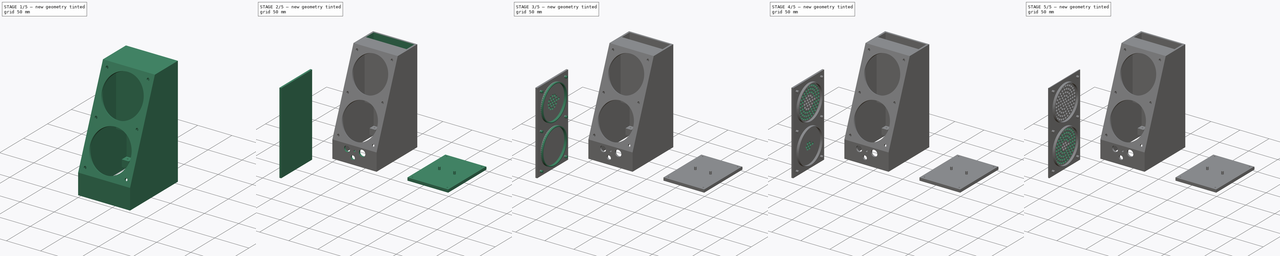
[diagram: build sequence overview — one tinted view per stage of 5, left to right]
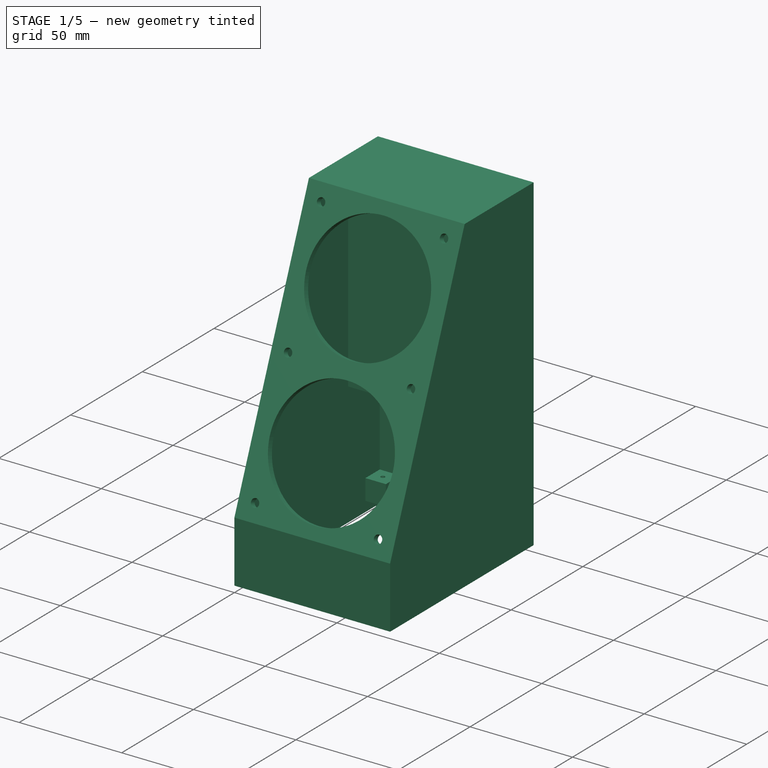
[diagram: stage 1 of 5 — iso view after this stage's code; geometry added in this stage tinted green]
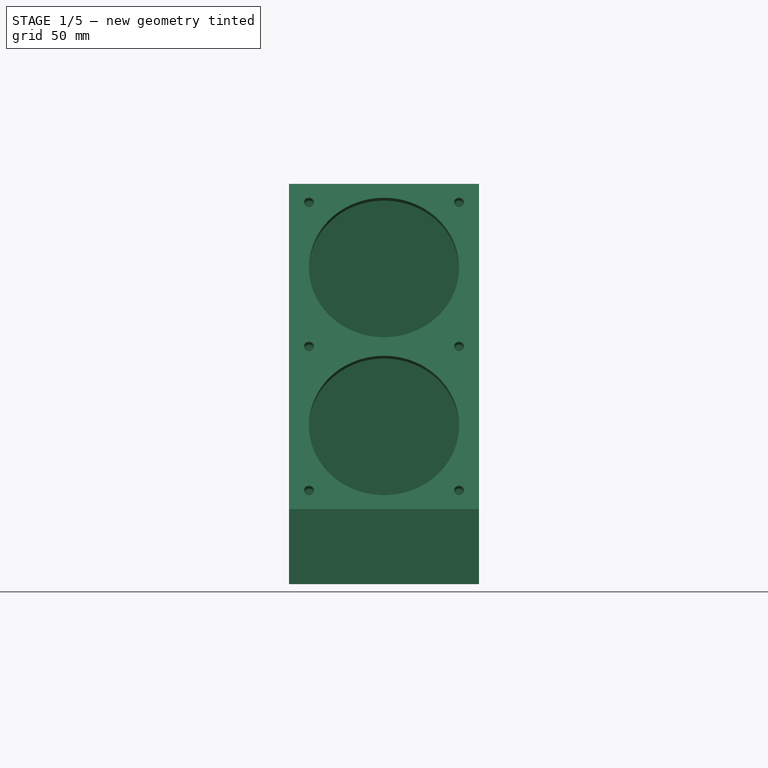
[diagram: stage 1 of 5 — front view after this stage's code; geometry added in this stage tinted green]
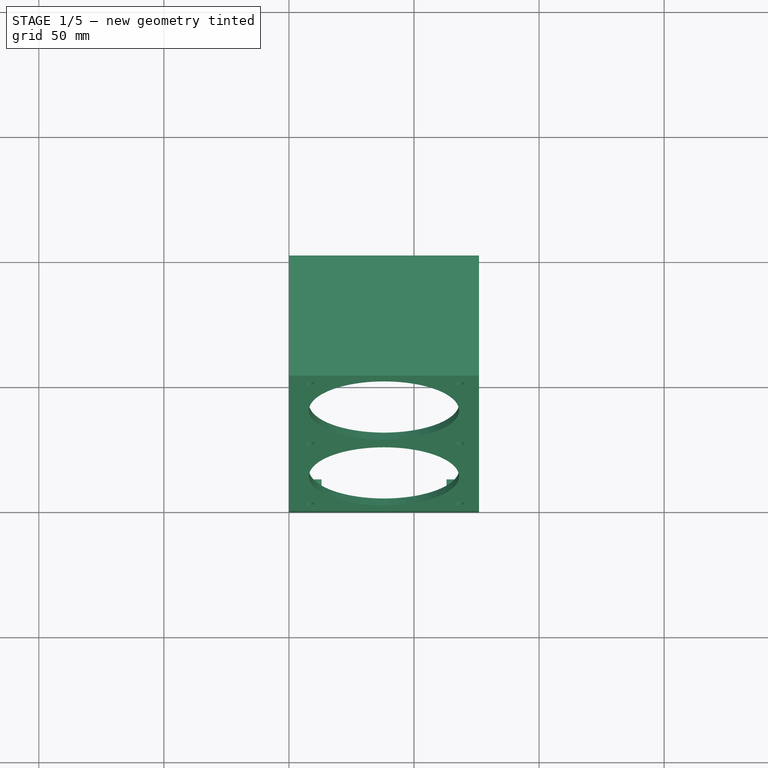
[diagram: stage 1 of 5 — top view after this stage's code; geometry added in this stage tinted green]
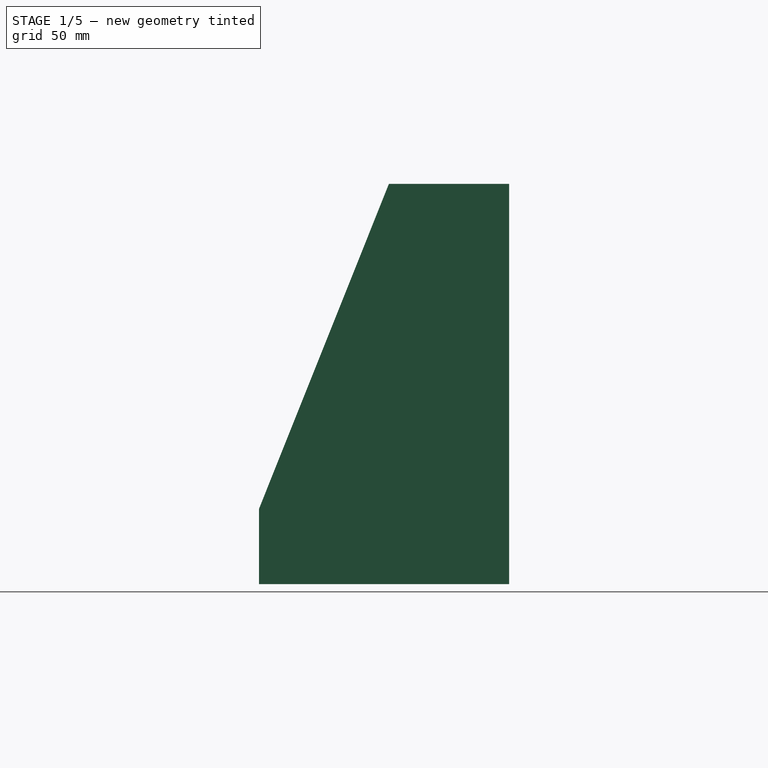
[diagram: stage 1 of 5 — right view after this stage's code; geometry added in this stage tinted green]
FCSTD DOCUMENT  (FreeCAD 0.21R33668 +26 (Git))
Label: speaker
License: All rights reserved
LicenseURL: https://en.wikipedia.org/wiki/All_rights_reserved
objects: Sketcher::SketchObject×27, PartDesign::Pocket×19, PartDesign::PolarPattern×10, PartDesign::Pad×8, PartDesign::Body×3, PartDesign::Fillet×1, PartDesign::Chamfer×1
note: 98 computed .brp shape members not serialized (recipe doc carries the construction recipe); baked Part::Feature solids carry a one-line shape summary decoded from their .brp

FEATURE [Sketcher::SketchObject] Sketch
  FullyConstrained = false
  MapMode = 5
  Placement = pos=(0,0,0) rot=(0.57735,0.57735,0.57735;2.0944rad)
  Support = -> [YZ_Plane]
  sketch-geometry (5):
    g0: LineSegment StartX=-48.0385 StartY=160 StartZ=0 EndX=0 EndY=160 EndZ=0
    g1: LineSegment StartX=-2.4e-15 StartY=160 StartZ=0 EndX=-2.4e-15 EndY=0 EndZ=0
    g2: LineSegment StartX=-2.4e-15 StartY=0 StartZ=0 EndX=-100 EndY=0 EndZ=0
    g3: LineSegment StartX=-100 StartY=0 StartZ=0 EndX=-100 EndY=30 EndZ=0
    g4: LineSegment StartX=-100 StartY=30 StartZ=0 EndX=-48.0385 EndY=160 EndZ=0
  constraints (13):
    c: Horizontal(g0)
    c: Coincident(g0,g1)
    c: Vertical(g1)
    c: Coincident(g1,g2)
    c: Horizontal(g2)
    c: Coincident(g2,g3)
    c: Vertical(g3)
    c: Coincident(g3,g4)
    c: Coincident(g4,g0)
    c: Distance(g4) = 140
    c: Distance(g3) = 30
    c: DistanceX(g2,g2) = 100
    c: Distance(g1) = 160
FEATURE [PartDesign::Pad] Pad  label="Вигляд збоку"
  Direction = (1,-2e-16,3e-16)
  Length = 76
  Length2 = 10
  Placement = pos=(0,0,0) rot=(0.57735,0.57735,0.57735;2.0944rad)
  Profile = -> Sketch
  ReferenceAxis = -> Sketch [N_Axis]
  Type = 0
FEATURE [Sketcher::SketchObject] Sketch001
  ExternalGeometry = -> [Pad]
  FullyConstrained = true
  MapMode = 5
  Placement = pos=(0,0,0) rot=(0.707107,0.707107,0;3.14159rad)
  Support = -> [Pad]
  sketch-geometry (4):
    g0: LineSegment StartX=-97 StartY=73 StartZ=0 EndX=-3 EndY=73 EndZ=0
    g1: LineSegment StartX=-3 StartY=73 StartZ=0 EndX=-3 EndY=3 EndZ=0
    g2: LineSegment StartX=-3 StartY=3 StartZ=0 EndX=-97 EndY=3 EndZ=0
    g3: LineSegment StartX=-97 StartY=3 StartZ=0 EndX=-97 EndY=73 EndZ=0
  constraints (12):
    c: Coincident(g0,g1)
    c: Coincident(g1,g2)
    c: Coincident(g2,g3)
    c: Coincident(g3,g0)
    c: Horizontal(g0)
    c: Horizontal(g2)
    c: Vertical(g1)
    c: Vertical(g3)
    c: Distance(g0,g-2) = 3
    c: Distance(g1,g-1) = 3
    c: Distance(g2,g-4) = 3
    c: Distance(g0,g-3) = 3
FEATURE [PartDesign::Pocket] Pocket  label="Дно"
  BaseFeature = -> Pad
  Direction = (-4e-16,6e-16,1)
  Length = 157
  Length2 = 5
  Placement = pos=(0,0,0) rot=(0.57735,0.57735,0.57735;2.0944rad)
  Profile = -> Sketch001
  ReferenceAxis = -> Sketch001 [N_Axis]
  Type = 0
FEATURE [Sketcher::SketchObject] Sketch002
  ExternalGeometry = -> [Pocket]
  FullyConstrained = true
  MapMode = 5
  Placement = pos=(-5.41e-14,-96.5638,38.5969) rot=(0.489091,0.489091,-0.722205;1.89064rad)
  Support = -> [Pocket]
  sketch-geometry (4):
    g0: LineSegment StartX=-130.742 StartY=76 StartZ=0 EndX=9.25823 EndY=76 EndZ=0
    g1: LineSegment StartX=9.25823 StartY=76 StartZ=0 EndX=9.25823 EndY=2.84e-14 EndZ=0
    g2: LineSegment StartX=9.25823 StartY=2.84e-14 StartZ=0 EndX=-130.742 EndY=2.84e-14 EndZ=0
    g3: LineSegment StartX=-130.742 StartY=2.84e-14 StartZ=0 EndX=-130.742 EndY=76 EndZ=0
  constraints (10):
    c: Coincident(g0,g1)
    c: Coincident(g1,g2)
    c: Coincident(g2,g3)
    c: Coincident(g3,g0)
    c: Horizontal(g0)
    c: Horizontal(g2)
    c: Vertical(g1)
    c: Vertical(g3)
    c: Coincident(g0,g-5)
    c: Coincident(g-3,g1)
FEATURE [PartDesign::Pad] Pad001  label="Накл фронт"
  BaseFeature = -> Pocket
  Direction = (-6e-16,-0.928571,0.371154)
  Length = 3
  Length2 = 0.01
  Placement = pos=(0,0,0) rot=(0.57735,0.57735,0.57735;2.0944rad)
  Profile = -> Sketch002
  ReferenceAxis = -> Sketch002 [N_Axis]
  Reversed = true
  Type = 4
FEATURE [Sketcher::SketchObject] Sketch003
  ExternalGeometry = -> [Pad001]
  FullyConstrained = true
  MapMode = 5
  Placement = pos=(-7.34e-14,-96.5731,38.6006) rot=(0.489091,0.489091,-0.722205;1.89064rad)
  Support = -> [Pad001]
  sketch-geometry (8):
    g0: Circle CenterX=-94.7418 CenterY=38 CenterZ=0 NormalX=0 NormalY=0 NormalZ=1 AngleXU=0 Radius=30
    g1: Circle CenterX=-26.7418 CenterY=38 CenterZ=0 NormalX=0 NormalY=0 NormalZ=1 AngleXU=0 Radius=30
    g2: Circle CenterX=-122.742 CenterY=8 CenterZ=0 NormalX=0 NormalY=0 NormalZ=1 AngleXU=0 Radius=2
    g3: Circle CenterX=-122.742 CenterY=68 CenterZ=0 NormalX=0 NormalY=0 NormalZ=1 AngleXU=0 Radius=2
    g4: Circle CenterX=-60.7418 CenterY=8 CenterZ=0 NormalX=0 NormalY=0 NormalZ=1 AngleXU=0 Radius=2
    g5: Circle CenterX=-60.7418 CenterY=68 CenterZ=0 NormalX=0 NormalY=0 NormalZ=1 AngleXU=0 Radius=2
    g6: Circle CenterX=1.25823 CenterY=8 CenterZ=0 NormalX=0 NormalY=0 NormalZ=1 AngleXU=0 Radius=2
    g7: Circle CenterX=1.25823 CenterY=68 CenterZ=0 NormalX=0 NormalY=0 NormalZ=1 AngleXU=0 Radius=2
  constraints (26):
    c: Equal(g0,g1)
    c: Distance(g0,g-1) = 38
    c: Distance(g1,g-1) = 38
    c: Diameter(g0) = 60
    c: Distance(g0,g-5) = 36
    c: Distance(g1,g-4) = 36
    c: Equal(g2,g3)
    c: Equal(g3,g5)
    c: Equal(g5,g4)
    c: Equal(g4,g6)
    c: Equal(g6,g7)
    c: Diameter(g2) = 4
    c: Distance(g2,g-1) = 8
    c: Distance(g2,g-5) = 8
    c: Distance(g4,g-1) = 8
    c: Distance(g6,g-1) = 8
    c: Distance(g7,g-3) = 8
    c: Distance(g5,g-3) = 8
    c: Distance(g3,g-3) = 8
    c: Distance(g6,g-4) = 8
    c: Distance(g7,g-4) = 8
    c: Distance(g3,g-5) = 8
    c: Distance(g-3) = 140
    c: Distance(g-4) = 76
    c: Distance(g4,g-4) = 70
    c: Distance(g5,g-4) = 70
FEATURE [PartDesign::Pocket] Pocket001  label="Отвори в фронт"
  BaseFeature = -> Pad001
  Direction = (8e-16,0.928571,-0.371154)
  Length = 5
  Length2 = 5
  Placement = pos=(0,0,0) rot=(0.57735,0.57735,0.57735;2.0944rad)
  Profile = -> Sketch003
  ReferenceAxis = -> Sketch003 [N_Axis]
  Type = 2
FEATURE [Sketcher::SketchObject] Sketch017
  ExternalGeometry = -> [Pocket001]
  FullyConstrained = true
  MapMode = 5
  Placement = pos=(0,0,0) rot=(0.707107,0.707107,0;3.14159rad)
  Support = -> [Pocket001]
  sketch-geometry (16):
    g0: LineSegment StartX=-3 StartY=73 StartZ=0 EndX=-13 EndY=73 EndZ=0
    g1: LineSegment StartX=-13 StartY=73 StartZ=0 EndX=-13 EndY=63 EndZ=0
    g2: LineSegment StartX=-13 StartY=63 StartZ=0 EndX=-3 EndY=63 EndZ=0
    g3: LineSegment StartX=-3 StartY=63 StartZ=0 EndX=-3 EndY=73 EndZ=0
    g4: LineSegment StartX=-3 StartY=3 StartZ=0 EndX=-13 EndY=3 EndZ=0
    g5: LineSegment StartX=-13 StartY=3 StartZ=0 EndX=-13 EndY=13 EndZ=0
    g6: LineSegment StartX=-13 StartY=13 StartZ=0 EndX=-3 EndY=13 EndZ=0
    g7: LineSegment StartX=-3 StartY=13 StartZ=0 EndX=-3 EndY=3 EndZ=0
    g8: LineSegment StartX=-97 StartY=3 StartZ=0 EndX=-87 EndY=3 EndZ=0
    g9: LineSegment StartX=-87 StartY=3 StartZ=0 EndX=-87 EndY=13 EndZ=0
    g10: LineSegment StartX=-87 StartY=13 StartZ=0 EndX=-97 EndY=13 EndZ=0
    g11: LineSegment StartX=-97 StartY=13 StartZ=0 EndX=-97 EndY=3 EndZ=0
    g12: LineSegment StartX=-97 StartY=73 StartZ=0 EndX=-87 EndY=73 EndZ=0
    g13: LineSegment StartX=-87 StartY=73 StartZ=0 EndX=-87 EndY=63 EndZ=0
    g14: LineSegment StartX=-87 StartY=63 StartZ=0 EndX=-97 EndY=63 EndZ=0
    g15: LineSegment StartX=-97 StartY=63 StartZ=0 EndX=-97 EndY=73 EndZ=0
  constraints (46):
    c: Distance(g-3) = 70
    c: Distance(g-4) = 94
    c: Coincident(g0,g1)
    c: Coincident(g1,g2)
    c: Coincident(g2,g3)
    c: Coincident(g3,g0)
    c: Horizontal(g0)
    c: Horizontal(g2)
    c: Vertical(g1)
    c: Vertical(g3)
    c: Coincident(g0,g-4)
    c: Coincident(g4,g5)
    c: Coincident(g5,g6)
    c: Coincident(g6,g7)
    c: Coincident(g7,g4)
    c: Horizontal(g4)
    c: Horizontal(g6)
    c: Vertical(g5)
    c: Vertical(g7)
    c: Coincident(g4,g-6)
    c: Coincident(g8,g9)
    c: Coincident(g9,g10)
    c: Coincident(g10,g11)
    c: Coincident(g11,g8)
    c: Horizontal(g8)
    c: Horizontal(g10)
    c: Vertical(g9)
    c: Vertical(g11)
    c: Coincident(g8,g-6)
    c: Coincident(g12,g13)
    c: Coincident(g13,g14)
    c: Coincident(g14,g15)
    c: Coincident(g15,g12)
    c: Horizontal(g12)
    c: Horizontal(g14)
    c: Vertical(g13)
    c: Vertical(g15)
    c: Coincident(g12,g-5)
    c: DistanceX(g0,g0) = 10
    c: DistanceX(g6,g6) = 10
    c: DistanceX(g10,g10) = 10
    c: DistanceX(g14,g14) = 10
    c: DistanceY(g1,g1) = 10
    c: DistanceY(g5,g5) = 10
    c: DistanceY(g9,g9) = 10
    c: DistanceY(g13,g13) = 10
FEATURE [PartDesign::Pad] Pad004  label="нижні кріплення"
  BaseFeature = -> Pocket001
  Direction = (3e-16,-6e-16,-1)
  Length = 15
  Length2 = 10
  Placement = pos=(0,0,0) rot=(0.57735,0.57735,0.57735;2.0944rad)
  Profile = -> Sketch017
  ReferenceAxis = -> Sketch017 [N_Axis]
  Reversed = true
  Type = 0
FEATURE [Sketcher::SketchObject] Sketch018
  ExternalGeometry = -> [Pad004]
  FullyConstrained = true
  MapMode = 5
  Placement = pos=(0,0,0) rot=(0.707107,0.707107,0;3.14159rad)
  Support = -> [Pad004]
  sketch-geometry (4):
    g0: LineSegment StartX=-97 StartY=73 StartZ=0 EndX=-3 EndY=73 EndZ=0
    g1: LineSegment StartX=-3 StartY=73 StartZ=0 EndX=-3 EndY=3 EndZ=0
    g2: LineSegment StartX=-3 StartY=3 StartZ=0 EndX=-97 EndY=3 EndZ=0
    g3: LineSegment StartX=-97 StartY=3 StartZ=0 EndX=-97 EndY=73 EndZ=0
  constraints (10):
    c: Coincident(g0,g1)
    c: Coincident(g1,g2)
    c: Coincident(g2,g3)
    c: Coincident(g3,g0)
    c: Horizontal(g0)
    c: Horizontal(g2)
    c: Vertical(g1)
    c: Vertical(g3)
    c: Coincident(g0,g-3)
    c: Coincident(g1,g-4)
FEATURE [PartDesign::Pocket] Pocket013  label="заглиб для дна"
  BaseFeature = -> Pad004
  Direction = (-3e-16,6e-16,1)
  Length = 5
  Length2 = 5
  Placement = pos=(0,0,0) rot=(0.57735,0.57735,0.57735;2.0944rad)
  Profile = -> Sketch018
  ReferenceAxis = -> Sketch018 [N_Axis]
  Type = 0
FEATURE [Sketcher::SketchObject] Sketch019
  ExternalGeometry = -> [Pocket013]
  FullyConstrained = true
  MapMode = 5
  Placement = pos=(-1.4e-15,3.3e-15,5) rot=(0.707107,0.707107,0;3.14159rad)
  Support = -> [Pocket013]
  sketch-geometry (4):
    g0: Circle CenterX=-92 CenterY=68 CenterZ=0 NormalX=0 NormalY=0 NormalZ=1 AngleXU=0 Radius=1
    g1: Circle CenterX=-8 CenterY=68 CenterZ=0 NormalX=0 NormalY=0 NormalZ=1 AngleXU=0 Radius=1
    g2: Circle CenterX=-92 CenterY=8 CenterZ=0 NormalX=0 NormalY=0 NormalZ=1 AngleXU=0 Radius=1
    g3: Circle CenterX=-8 CenterY=8 CenterZ=0 NormalX=0 NormalY=0 NormalZ=1 AngleXU=0 Radius=1
  constraints (13):
    c: Diameter(g0) = 2
    c: Equal(g0,g2)
    c: Equal(g2,g3)
    c: Equal(g3,g1)
    c: Distance(g0,g-9) = 5
    c: Distance(g0,g-10) = 5
    c: Distance(g2,g-8) = 5
    c: Distance(g2,g-7) = 5
    c: Distance(g-5) = 10
    c: Distance(g3,g-5) = 5
    c: Distance(g3,g-6) = 5
    c: Distance(g1,g-4) = 5
    c: Distance(g1,g-3) = 5
FEATURE [PartDesign::Pocket] Pocket014
  BaseFeature = -> Pocket013
  Direction = (-3e-16,7e-16,1)
  Length = 10
  Length2 = 5
  Placement = pos=(0,0,0) rot=(0.57735,0.57735,0.57735;2.0944rad)
  Profile = -> Sketch019
  ReferenceAxis = -> Sketch019 [N_Axis]
  Type = 0
FEATURE [Sketcher::SketchObject] Sketch022
  ExternalGeometry = -> [Pocket014]
  FullyConstrained = true
  MapMode = 5
  Placement = pos=(-4.48e-14,1.148e-13,160) rot=(0,0,-1;1.5708rad)
  Support = -> [Pocket014]
  sketch-geometry (4):
    g0: LineSegment StartX=1.207e-13 StartY=76 StartZ=0 EndX=25 EndY=76 EndZ=0
    g1: LineSegment StartX=25 StartY=76 StartZ=0 EndX=25 EndY=0 EndZ=0
    g2: LineSegment StartX=25 StartY=0 StartZ=0 EndX=1.208e-13 EndY=0 EndZ=0
    g3: LineSegment StartX=1.208e-13 StartY=0 StartZ=0 EndX=1.207e-13 EndY=76 EndZ=0
  constraints (10):
    c: Coincident(g0,g1)
    c: Coincident(g1,g2)
    c: Coincident(g2,g3)
    c: Coincident(g3,g0)
    c: Horizontal(g0)
    c: Horizontal(g2)
    c: Vertical(g1)
    c: DistanceX(g0,g0) = 25
    c: Coincident(g0,g-3)
    c: Coincident(g2,g-1)
FEATURE [PartDesign::Pad] Pad006  label="органайзер"
  BaseFeature = -> Pocket014
  Direction = (-3e-16,7e-16,1)
  Length = 100
  Length2 = 10
  Placement = pos=(0,0,0) rot=(0.57735,0.57735,0.57735;2.0944rad)
  Profile = -> Sketch022
  ReferenceAxis = -> Sketch022 [N_Axis]
  Reversed = true
  Type = 0
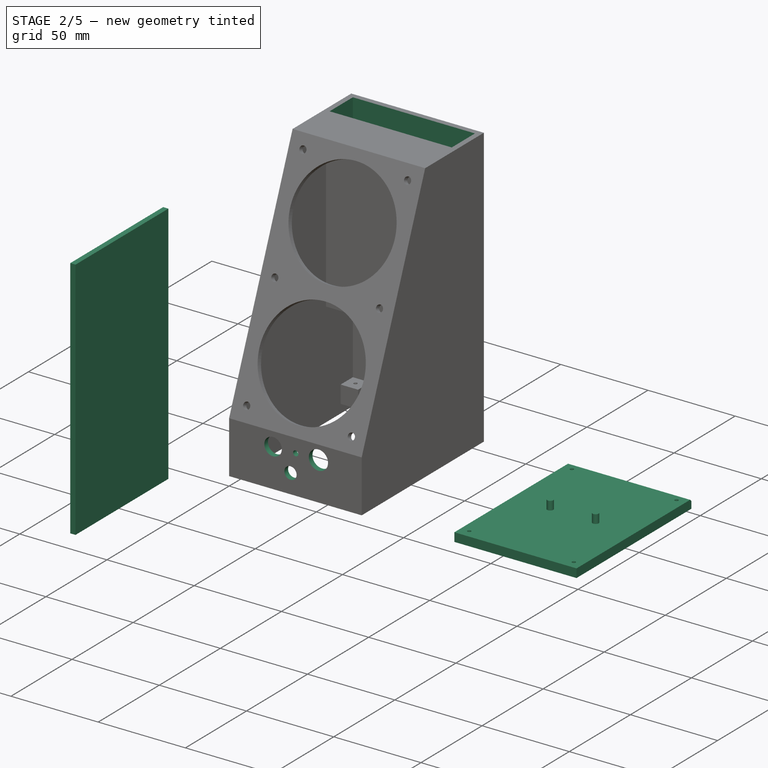
[diagram: stage 2 of 5 — iso view after this stage's code; geometry added in this stage tinted green]
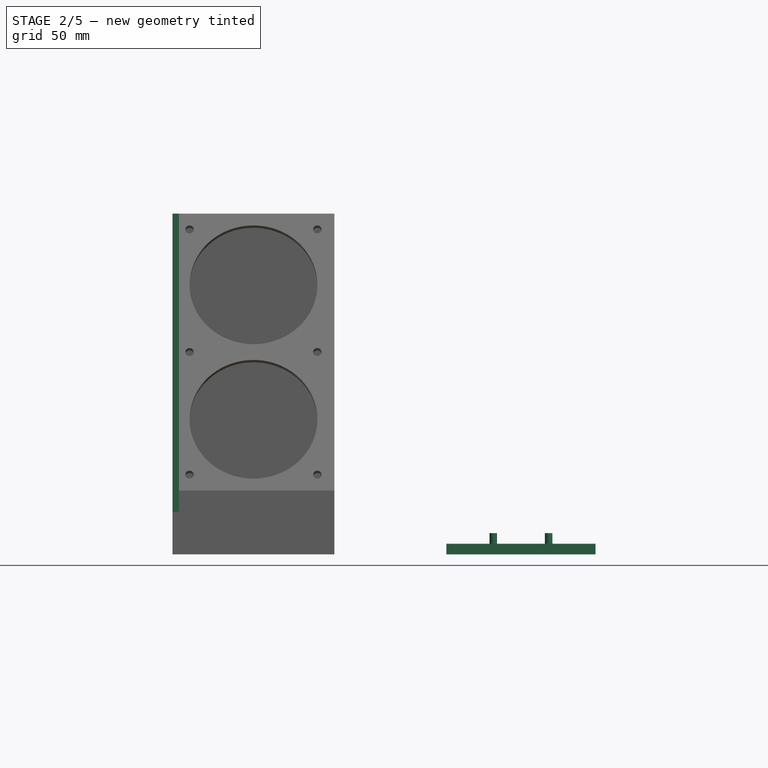
[diagram: stage 2 of 5 — front view after this stage's code; geometry added in this stage tinted green]
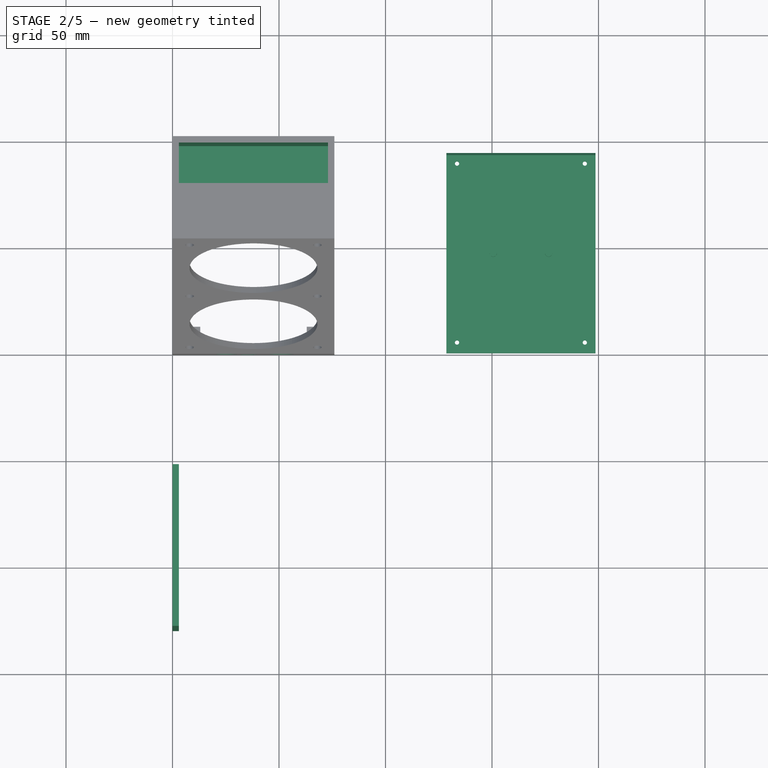
[diagram: stage 2 of 5 — top view after this stage's code; geometry added in this stage tinted green]
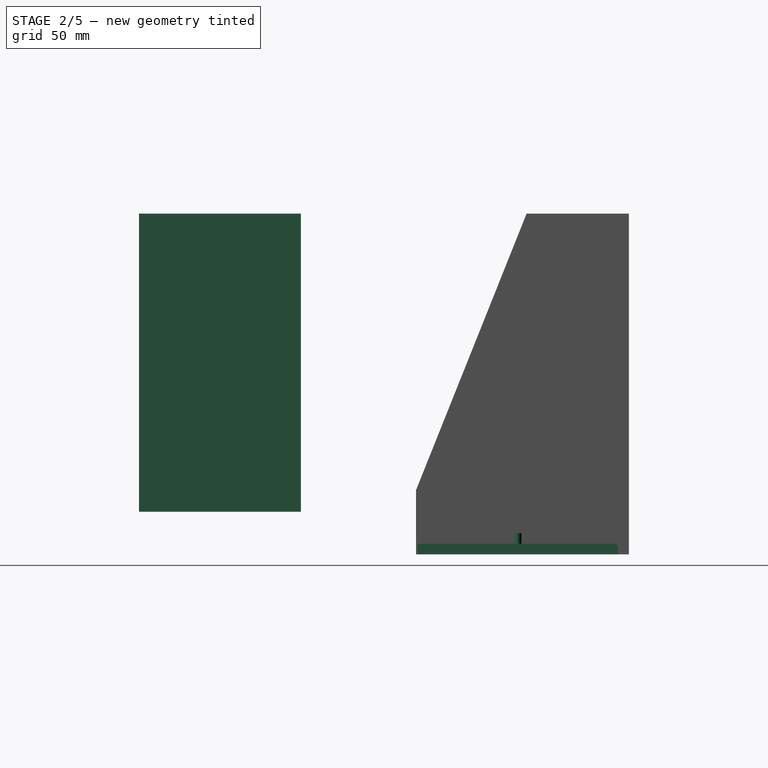
[diagram: stage 2 of 5 — right view after this stage's code; geometry added in this stage tinted green]
FEATURE [Sketcher::SketchObject] Sketch004
  FullyConstrained = false
  MapMode = 5
  Placement = pos=(0,0,0) rot=(0.57735,0.57735,0.57735;2.0944rad)
  Support = -> [YZ_Plane001]
  sketch-geometry (4):
    g0: LineSegment StartX=-230 StartY=160 StartZ=0 EndX=-154 EndY=160 EndZ=0
    g1: LineSegment StartX=-154 StartY=160 StartZ=0 EndX=-154 EndY=20 EndZ=0
    g2: LineSegment StartX=-154 StartY=20 StartZ=0 EndX=-230 EndY=20 EndZ=0
    g3: LineSegment StartX=-230 StartY=20 StartZ=0 EndX=-230 EndY=160 EndZ=0
  constraints (10):
    c: Coincident(g0,g1)
    c: Coincident(g1,g2)
    c: Coincident(g2,g3)
    c: Coincident(g3,g0)
    c: Horizontal(g0)
    c: Horizontal(g2)
    c: Vertical(g1)
    c: Vertical(g3)
    c: DistanceX(g0,g0) = 76
    c: DistanceY(g1,g1) = 140
FEATURE [PartDesign::Pad] Pad002  label="заг розмір"
  Direction = (1,-2e-16,3e-16)
  Length = 3
  Length2 = 10
  Placement = pos=(0,0,0) rot=(1,1,1;2.0944rad)
  Profile = -> Sketch004
  ReferenceAxis = -> Sketch004 [N_Axis]
  Type = 0
FEATURE [Sketcher::SketchObject] Sketch020
  FullyConstrained = false
  MapMode = 5
  Support = -> [XY_Plane002]
  sketch-geometry (4):
    g0: LineSegment StartX=128.571 StartY=-99.2082 StartZ=0 EndX=198.571 EndY=-99.2082 EndZ=0
    g1: LineSegment StartX=198.571 StartY=-99.2082 StartZ=0 EndX=198.571 EndY=-5.20825 EndZ=0
    g2: LineSegment StartX=198.571 StartY=-5.20825 StartZ=0 EndX=128.571 EndY=-5.20825 EndZ=0
    g3: LineSegment StartX=128.571 StartY=-5.20825 StartZ=0 EndX=128.571 EndY=-99.2082 EndZ=0
  constraints (10):
    c: Coincident(g0,g1)
    c: Coincident(g1,g2)
    c: Coincident(g2,g3)
    c: Coincident(g3,g0)
    c: Horizontal(g0)
    c: Horizontal(g2)
    c: Vertical(g1)
    c: Vertical(g3)
    c: DistanceX(g0,g0) = 70
    c: DistanceY(g1,g1) = 94
FEATURE [PartDesign::Pad] Pad005
  Direction = (0,0,1)
  Length = 5
  Length2 = 10
  Profile = -> Sketch020
  ReferenceAxis = -> Sketch020 [N_Axis]
  Type = 0
FEATURE [Sketcher::SketchObject] Sketch021
  ExternalGeometry = -> [Pad005]
  FullyConstrained = true
  MapMode = 5
  Placement = pos=(0,0,0) rot=(1,0,0;3.14159rad)
  Support = -> [Pad005]
  sketch-geometry (4):
    g0: Circle CenterX=133.571 CenterY=94.2082 CenterZ=0 NormalX=0 NormalY=0 NormalZ=1 AngleXU=0 Radius=1
    g1: Circle CenterX=133.571 CenterY=10.2082 CenterZ=0 NormalX=0 NormalY=0 NormalZ=1 AngleXU=0 Radius=1
    g2: Circle CenterX=193.571 CenterY=94.2082 CenterZ=0 NormalX=0 NormalY=0 NormalZ=1 AngleXU=0 Radius=1
    g3: Circle CenterX=193.571 CenterY=10.2082 CenterZ=0 NormalX=0 NormalY=0 NormalZ=1 AngleXU=0 Radius=1
  constraints (12):
    c: Diameter(g0) = 2
    c: Equal(g0,g2)
    c: Equal(g2,g3)
    c: Equal(g3,g1)
    c: Distance(g0,g-3) = 5
    c: Distance(g0,g-6) = 5
    c: Distance(g1,g-5) = 5
    c: Distance(g1,g-6) = 5
    c: Distance(g2,g-3) = 5
    c: Distance(g2,g-4) = 5
    c: Distance(g3,g-4) = 5
    c: Distance(g3,g-5) = 5
FEATURE [PartDesign::Pocket] Pocket015
  BaseFeature = -> Pad005
  Direction = (0,0,1)
  Length = 5
  Length2 = 5
  Profile = -> Sketch021
  ReferenceAxis = -> Sketch021 [N_Axis]
  Type = 1
FEATURE [Sketcher::SketchObject] Sketch023
  ExternalGeometry = -> [Pad006]
  FullyConstrained = true
  MapMode = 5
  Placement = pos=(-4.48e-14,1.237e-13,160) rot=(0,0,-1;1.5708rad)
  Support = -> [Pad006]
  sketch-geometry (4):
    g0: LineSegment StartX=3 StartY=73 StartZ=0 EndX=22 EndY=73 EndZ=0
    g1: LineSegment StartX=22 StartY=73 StartZ=0 EndX=22 EndY=3 EndZ=0
    g2: LineSegment StartX=22 StartY=3 StartZ=0 EndX=3 EndY=3 EndZ=0
    g3: LineSegment StartX=3 StartY=3 StartZ=0 EndX=3 EndY=73 EndZ=0
  constraints (12):
    c: Coincident(g0,g1)
    c: Coincident(g1,g2)
    c: Coincident(g2,g3)
    c: Coincident(g3,g0)
    c: Horizontal(g0)
    c: Horizontal(g2)
    c: Vertical(g1)
    c: Vertical(g3)
    c: Distance(g0,g-2) = 3
    c: Distance(g0,g-4) = 3
    c: Distance(g1,g-1) = 3
    c: Distance(g0,g-3) = 3
FEATURE [PartDesign::Pocket] Pocket016  label="органйзер заглибл"
  BaseFeature = -> Pad006
  Direction = (3e-16,-8e-16,-1)
  Length = 97
  Length2 = 5
  Placement = pos=(0,0,0) rot=(0.57735,0.57735,0.57735;2.0944rad)
  Profile = -> Sketch023
  ReferenceAxis = -> Sketch023 [N_Axis]
  Type = 0
FEATURE [PartDesign::Body] Body001  label="shield"
  Group = -> [Sketch004,Pad002,Sketch005,Pad003,Sketch006,Pocket002,Sketch007,Pocket003,PolarPattern,Sketch008,Pocket004,PolarPattern001,Sketch009,Pocket005,PolarPattern002,Sketch010,Pocket006,PolarPattern003,Sketch011,Pocket007,PolarPattern004,Sketch012,Pocket008,PolarPattern005,Sketch013,Pocket009,PolarPattern006,Sketch014,Pocket010,PolarPattern007,Sketch015,Pocket011,PolarPattern008,Sketch016,Pocket012,+2 more]
  Origin = -> Origin001
  Tip = -> Fillet
FEATURE [Sketcher::SketchObject] Sketch024
  ExternalGeometry = -> [Pocket015]
  FullyConstrained = true
  MapMode = 5
  Placement = pos=(0,0,0) rot=(1,0,0;3.14159rad)
  Support = -> [Pocket015]
  sketch-geometry (4):
    g0: Circle CenterX=133.571 CenterY=94.2082 CenterZ=0 NormalX=0 NormalY=0 NormalZ=1 AngleXU=0 Radius=2.5
    g1: Circle CenterX=133.571 CenterY=10.2082 CenterZ=0 NormalX=0 NormalY=0 NormalZ=1 AngleXU=0 Radius=2.5
    g2: Circle CenterX=193.571 CenterY=10.2082 CenterZ=0 NormalX=0 NormalY=0 NormalZ=1 AngleXU=0 Radius=2.5
    g3: Circle CenterX=193.571 CenterY=94.2082 CenterZ=0 NormalX=0 NormalY=0 NormalZ=1 AngleXU=0 Radius=2.5
  constraints (8):
    c: Coincident(g0,g-6)
    c: Coincident(g1,g-5)
    c: Coincident(g2,g-4)
    c: Coincident(g3,g-3)
    c: Diameter(g0) = 5
    c: Equal(g0,g3)
    c: Equal(g3,g2)
    c: Equal(g2,g1)
FEATURE [PartDesign::Pocket] Pocket017
  BaseFeature = -> Pocket015
  Direction = (0,0,1)
  Length = 2
  Length2 = 5
  Profile = -> Sketch024
  ReferenceAxis = -> Sketch024 [N_Axis]
  Type = 0
FEATURE [Sketcher::SketchObject] Sketch025
  ExternalGeometry = -> [Pocket017]
  FullyConstrained = true
  MapMode = 5
  Placement = pos=(0,0,5) rot=(0,0,1;0rad)
  Support = -> [Pocket017]
  sketch-geometry (2):
    g0: Circle CenterX=150.571 CenterY=-52.2082 CenterZ=0 NormalX=0 NormalY=0 NormalZ=1 AngleXU=0 Radius=1.75
    g1: Circle CenterX=176.571 CenterY=-52.2082 CenterZ=0 NormalX=0 NormalY=0 NormalZ=1 AngleXU=0 Radius=1.75
  constraints (8):
    c: Distance(g-3) = 70
    c: Distance(g0,g-3) = 47
    c: Distance(g0,g1) = 26
    c: Distance(g1,g-3) = 47
    c: Diameter(g0) = 3.5
    c: Equal(g0,g1)
    c: Distance(g1,g-4) = 22
    c: Distance(g-4) = 94
FEATURE [PartDesign::Pad] Pad007
  BaseFeature = -> Pocket017
  Direction = (0,0,1)
  Length = 5
  Length2 = 10
  Profile = -> Sketch025
  ReferenceAxis = -> Sketch025 [N_Axis]
  Type = 0
FEATURE [PartDesign::Chamfer] Chamfer
  Angle = 45
  Base = -> Pad007 [Edge16]
  BaseFeature = -> Pad007
  ChamferType = 0
  FlipDirection = false
  Size = 1
  Size2 = 1
  SupportTransform = false
  UseAllEdges = false
FEATURE [PartDesign::Body] Body002  label="Bottom"
  Group = -> [Sketch020,Pad005,Sketch021,Pocket015,Sketch024,Pocket017,Sketch025,Pad007,Chamfer]
  Origin = -> Origin002
  Tip = -> Chamfer
FEATURE [Sketcher::SketchObject] Sketch026
  ExternalGeometry = -> [Pocket016]
  FullyConstrained = false
  MapMode = 5
  Placement = pos=(-8.04e-14,-97,5.43e-14) rot=(0.57735,0.57735,0.57735;4.18879rad)
  Support = -> [Pocket016]
  sketch-geometry (4):
    g0: Circle CenterX=22 CenterY=51.1927 CenterZ=0 NormalX=0 NormalY=0 NormalZ=1 AngleXU=0 Radius=5.5
    g1: Circle CenterX=22 CenterY=25.1927 CenterZ=0 NormalX=0 NormalY=0 NormalZ=1 AngleXU=0 Radius=5
    g2: Circle CenterX=22 CenterY=38.1927 CenterZ=0 NormalX=0 NormalY=0 NormalZ=1 AngleXU=0 Radius=1.5
    g3: Circle CenterX=11 CenterY=35.1927 CenterZ=0 NormalX=0 NormalY=0 NormalZ=1 AngleXU=0 Radius=3.5
  constraints (11):
    c: Distance(g-3) = 50
    c: Distance(g0,g1) = 26
    c: Diameter(g0) = 11
    c: Diameter(g1) = 10
    c: Distance(g0,g-3) = 17
    c: Distance(g1,g-3) = 17
    c: Diameter(g2) = 3
    c: Distance(g0,g2) = 13
    c: Distance(g2,g-3) = 17
    c: Diameter(g3) = 7
    c: Distance(g3,g-3) = 6
FEATURE [PartDesign::Pocket] Pocket018
  BaseFeature = -> Pocket016
  Direction = (-8e-16,-1,6e-16)
  Length = 5
  Length2 = 5
  Placement = pos=(0,0,0) rot=(0.57735,0.57735,0.57735;2.0944rad)
  Profile = -> Sketch026
  ReferenceAxis = -> Sketch026 [N_Axis]
  Type = 1
FEATURE [PartDesign::Body] Body  label="Corpus"
  Group = -> [Sketch,Pad,Sketch001,Pocket,Sketch002,Pad001,Sketch003,Pocket001,Sketch017,Pad004,Sketch018,Pocket013,Sketch019,Pocket014,Sketch022,Pad006,Sketch023,Pocket016,Sketch026,Pocket018]
  Origin = -> Origin
  Tip = -> Pocket018
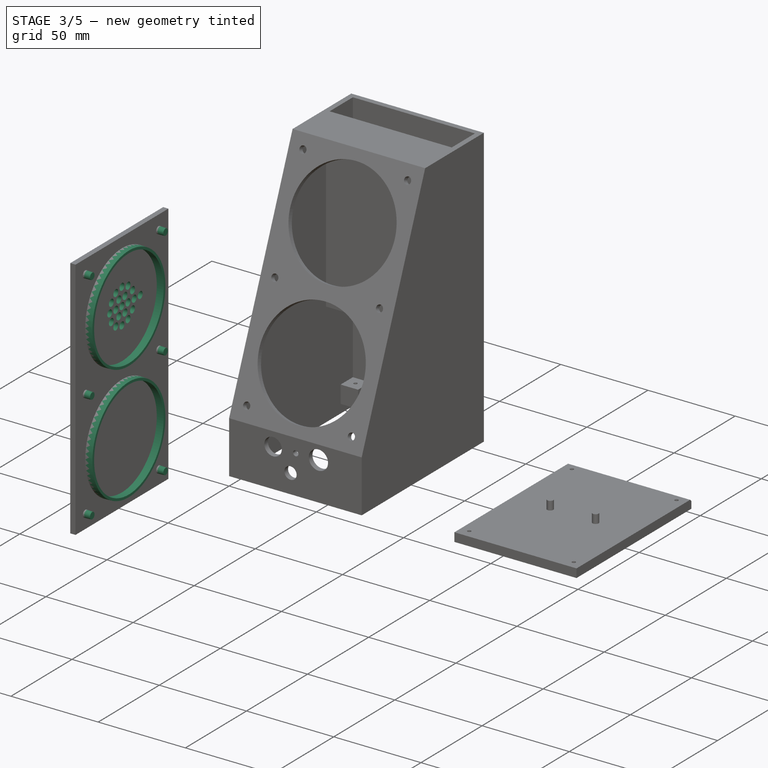
[diagram: stage 3 of 5 — iso view after this stage's code; geometry added in this stage tinted green]
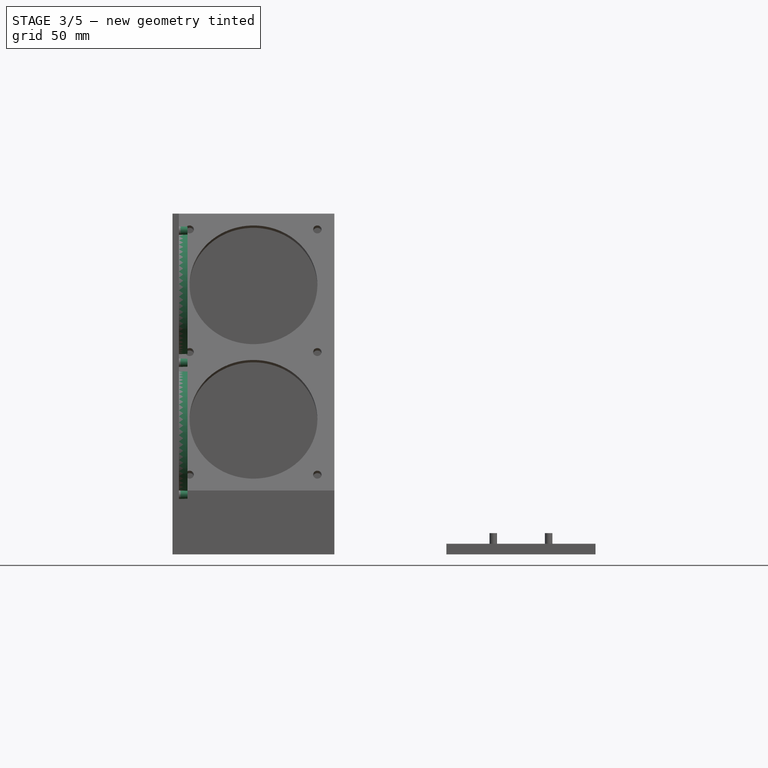
[diagram: stage 3 of 5 — front view after this stage's code; geometry added in this stage tinted green]
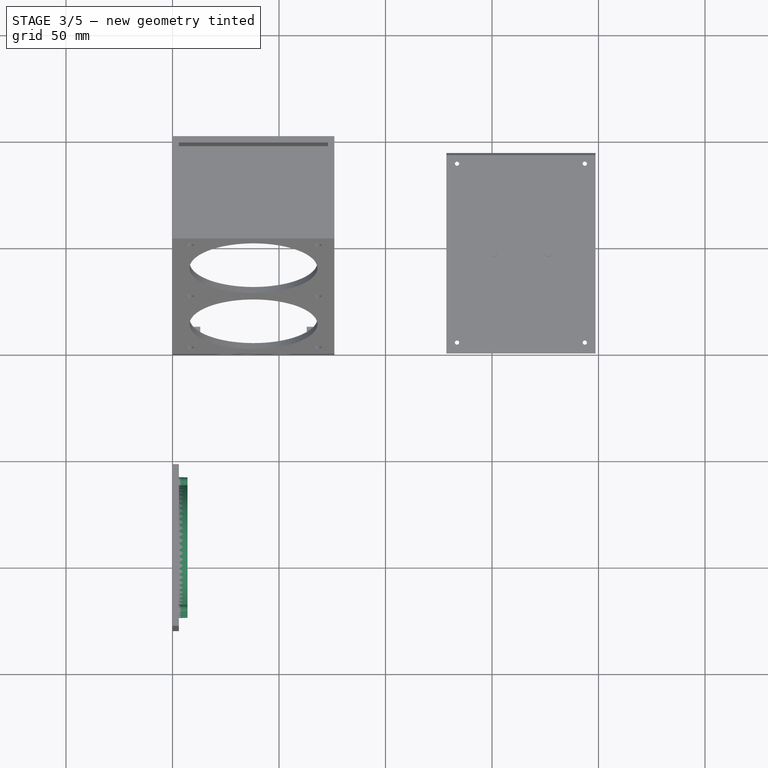
[diagram: stage 3 of 5 — top view after this stage's code; geometry added in this stage tinted green]
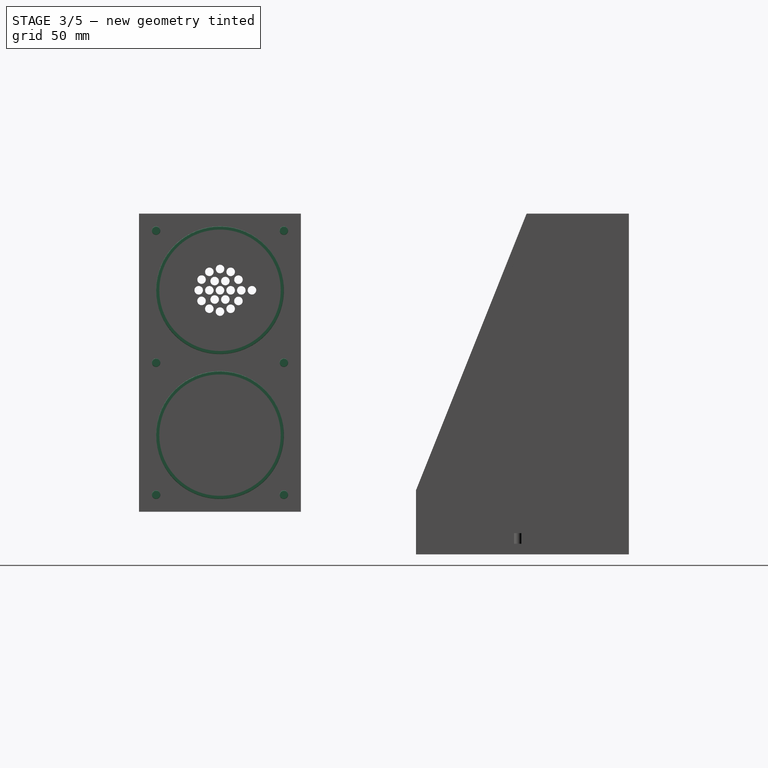
[diagram: stage 3 of 5 — right view after this stage's code; geometry added in this stage tinted green]
FEATURE [Sketcher::SketchObject] Sketch005
  ExternalGeometry = -> [Pad002]
  FullyConstrained = true
  MapMode = 5
  Placement = pos=(3,-1.3e-15,1e-15) rot=(0.57735,0.57735,0.57735;2.0944rad)
  Support = -> [Pad002]
  sketch-geometry (8):
    g0: Circle CenterX=-192 CenterY=124 CenterZ=0 NormalX=0 NormalY=0 NormalZ=1 AngleXU=0 Radius=30
    g1: Circle CenterX=-192 CenterY=56 CenterZ=0 NormalX=0 NormalY=0 NormalZ=1 AngleXU=0 Radius=30
    g2: Circle CenterX=-162 CenterY=90 CenterZ=0 NormalX=0 NormalY=0 NormalZ=1 AngleXU=0 Radius=2
    g3: Circle CenterX=-162 CenterY=28 CenterZ=0 NormalX=0 NormalY=0 NormalZ=1 AngleXU=0 Radius=2
    g4: Circle CenterX=-222 CenterY=28 CenterZ=0 NormalX=0 NormalY=0 NormalZ=1 AngleXU=0 Radius=2
    g5: Circle CenterX=-222 CenterY=90 CenterZ=0 NormalX=0 NormalY=0 NormalZ=1 AngleXU=0 Radius=2
    g6: Circle CenterX=-222 CenterY=152 CenterZ=0 NormalX=0 NormalY=0 NormalZ=1 AngleXU=0 Radius=2
    g7: Circle CenterX=-162 CenterY=152 CenterZ=0 NormalX=0 NormalY=0 NormalZ=1 AngleXU=0 Radius=2
  constraints (24):
    c: Equal(g0,g1)
    c: Equal(g2,g5)
    c: Equal(g5,g4)
    c: Equal(g4,g3)
    c: Diameter(g0) = 60
    c: Distance(g0,g-3) = 38
    c: Distance(g1,g-3) = 38
    c: Distance(g1,g-6) = 36
    c: Distance(g0,g-4) = 36
    c: Distance(g5,g-5) = 8
    c: Distance(g2,g-3) = 8
    c: Distance(g4,g-5) = 8
    c: Distance(g3,g-3) = 8
    c: Distance(g4,g-6) = 8
    c: Distance(g3,g-6) = 8
    c: Distance(g5,g-6) = 70
    c: Distance(g2,g-6) = 70
    c: Equal(g5,g6)
    c: Distance(g6,g-4) = 8
    c: Distance(g7,g-4) = 8
    c: Distance(g7,g-3) = 8
    c: Distance(g6,g-5) = 8
    c: Equal(g6,g7)
    c: Diameter(g6) = 4
FEATURE [PartDesign::Pad] Pad003  label="круглі виступи"
  BaseFeature = -> Pad002
  Direction = (1,-4e-16,4e-16)
  Length = 4
  Length2 = 10
  Placement = pos=(0,0,0) rot=(1,1,1;2.0944rad)
  Profile = -> Sketch005
  ReferenceAxis = -> Sketch005 [N_Axis]
  TaperAngle = -2
  Type = 0
FEATURE [Sketcher::SketchObject] Sketch006
  ExternalGeometry = -> [Pad003]
  FullyConstrained = true
  MapMode = 5
  Placement = pos=(7,-3.1e-15,5.4e-15) rot=(0.57735,0.57735,0.57735;2.0944rad)
  Support = -> [Pad003]
  sketch-geometry (2):
    g0: Circle CenterX=-192 CenterY=124 CenterZ=0 NormalX=0 NormalY=0 NormalZ=1 AngleXU=0 Radius=28.5
    g1: Circle CenterX=-192 CenterY=56 CenterZ=0 NormalX=0 NormalY=0 NormalZ=1 AngleXU=0 Radius=28.5
  constraints (4):
    c: Coincident(g0,g-3)
    c: Diameter(g0) = 57
    c: Coincident(g1,g-4)
    c: Equal(g0,g1)
FEATURE [PartDesign::Pocket] Pocket002
  BaseFeature = -> Pad003
  Direction = (-1,4e-16,-9e-16)
  Length = 4
  Length2 = 5
  Placement = pos=(0,0,0) rot=(1,1,1;2.0944rad)
  Profile = -> Sketch006
  ReferenceAxis = -> Sketch006 [N_Axis]
  Type = 0
FEATURE [Sketcher::SketchObject] Sketch007
  ExternalGeometry = -> [Pocket002]
  FullyConstrained = false
  MapMode = 5
  Placement = pos=(3,-2e-15,3e-15) rot=(0.57735,0.57735,0.57735;2.0944rad)
  Support = -> [Pocket002]
  sketch-geometry (2):
    g0: Circle CenterX=-192 CenterY=124 CenterZ=0 NormalX=0 NormalY=0 NormalZ=1 AngleXU=0 Radius=2
    g1: Circle CenterX=-187 CenterY=124.001 CenterZ=0 NormalX=0 NormalY=0 NormalZ=1 AngleXU=0 Radius=2
  constraints (4):
    c: Coincident(g0,g-4)
    c: Equal(g0,g1)
    c: Diameter(g0) = 4
    c: Distance(g0,g1) = 5
FEATURE [PartDesign::Pocket] Pocket003
  BaseFeature = -> Pocket002
  Direction = (-1,7e-16,-1.1e-15)
  Length = 5
  Length2 = 5
  Placement = pos=(0,0,0) rot=(1,1,1;2.0944rad)
  Profile = -> Sketch007
  ReferenceAxis = -> Sketch007 [N_Axis]
  Type = 1
FEATURE [PartDesign::PolarPattern] PolarPattern
  Angle = 360
  Axis = -> Pocket003 [Edge25]
  BaseFeature = -> Pocket003
  Occurrences = 6
  Originals = -> [Pocket003]
  Placement = pos=(0,0,0) rot=(1,1,1;2.0944rad)
FEATURE [Sketcher::SketchObject] Sketch008
  ExternalGeometry = -> [PolarPattern]
  FullyConstrained = false
  MapMode = 5
  Placement = pos=(3,-2.6e-15,3.3e-15) rot=(0.57735,0.57735,0.57735;2.0944rad)
  Support = -> [PolarPattern]
  sketch-geometry (1):
    g0: Circle CenterX=-182 CenterY=123.983 CenterZ=0 NormalX=0 NormalY=0 NormalZ=1 AngleXU=0 Radius=2
  constraints (2):
    c: Diameter(g0) = 4
    c: Distance(g-3,g0) = 10
FEATURE [PartDesign::Pocket] Pocket004
  BaseFeature = -> PolarPattern
  Direction = (-1,8e-16,-1e-15)
  Length = 5
  Length2 = 5
  Placement = pos=(0,0,0) rot=(1,1,1;2.0944rad)
  Profile = -> Sketch008
  ReferenceAxis = -> Sketch008 [N_Axis]
  Type = 1
FEATURE [PartDesign::PolarPattern] PolarPattern001
  Angle = 360
  Axis = -> Pocket004 [Edge45]
  BaseFeature = -> Pocket004
  Occurrences = 12
  Originals = -> [Pocket004]
  Placement = pos=(0,0,0) rot=(1,1,1;2.0944rad)
FEATURE [Sketcher::SketchObject] Sketch009
  ExternalGeometry = -> [PolarPattern001]
  FullyConstrained = false
  MapMode = 5
  Placement = pos=(3,-3.3e-15,3.7e-15) rot=(0.57735,0.57735,0.57735;2.0944rad)
  Support = -> [PolarPattern001]
  sketch-geometry (1):
    g0: Circle CenterX=-177 CenterY=124.018 CenterZ=0 NormalX=0 NormalY=0 NormalZ=1 AngleXU=0 Radius=2
  constraints (2):
    c: Diameter(g0) = 4
    c: Distance(g-3,g0) = 15
FEATURE [PartDesign::Pocket] Pocket005
  BaseFeature = -> PolarPattern001
  Direction = (-1,1e-15,-1.2e-15)
  Length = 5
  Length2 = 5
  Placement = pos=(0,0,0) rot=(1,1,1;2.0944rad)
  Profile = -> Sketch009
  ReferenceAxis = -> Sketch009 [N_Axis]
  Type = 1
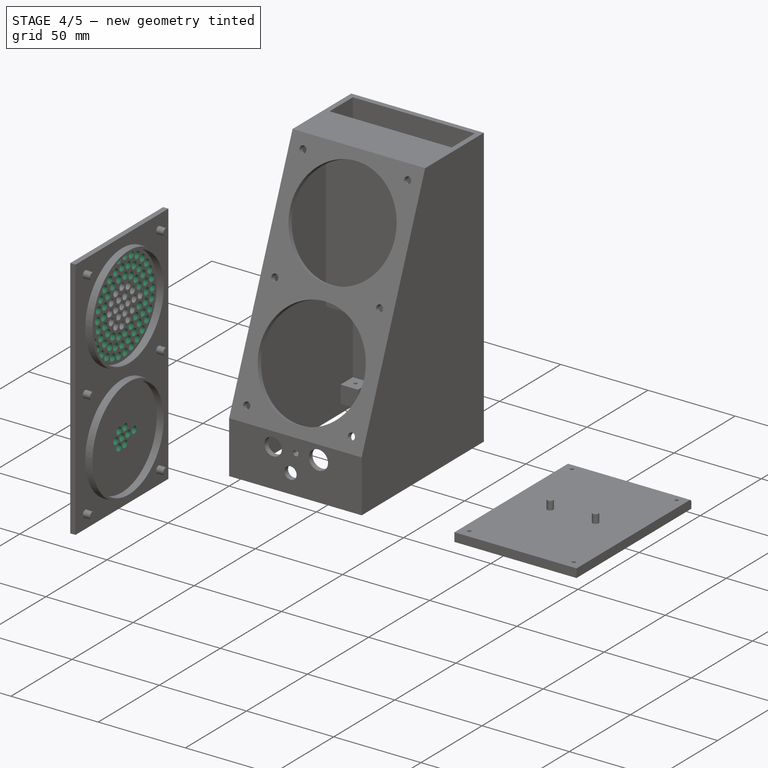
[diagram: stage 4 of 5 — iso view after this stage's code; geometry added in this stage tinted green]
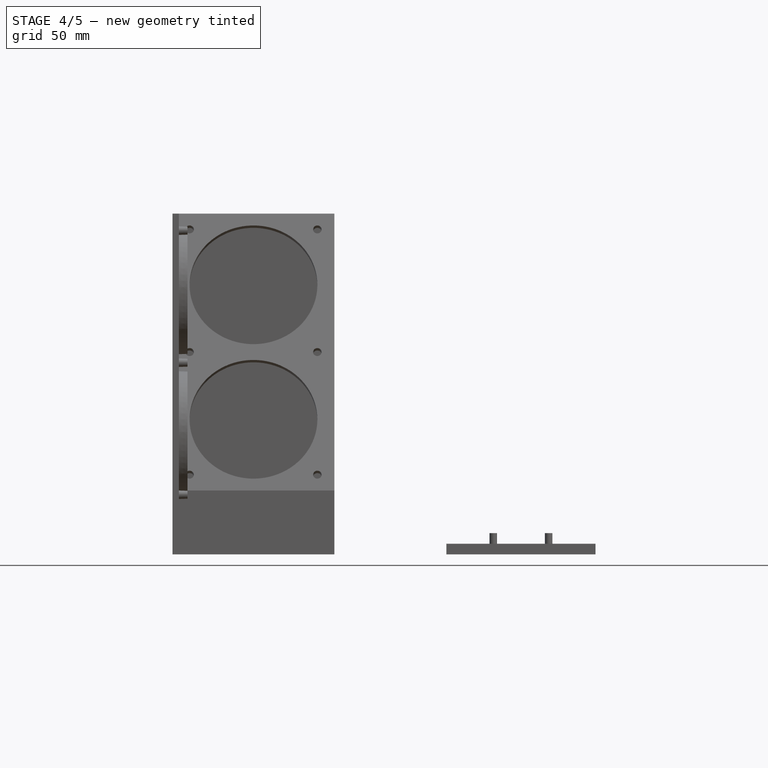
[diagram: stage 4 of 5 — front view after this stage's code; geometry added in this stage tinted green]
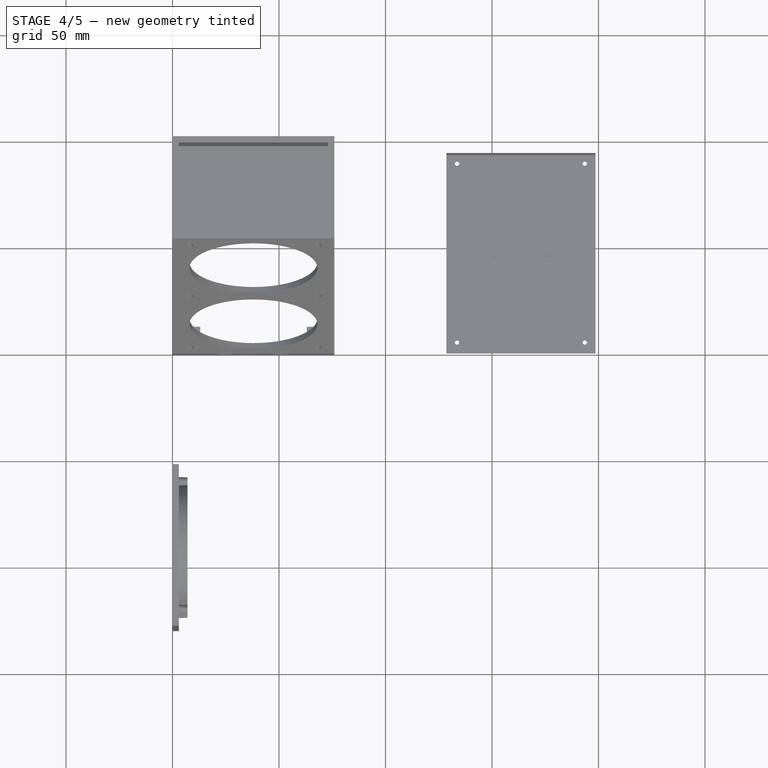
[diagram: stage 4 of 5 — top view after this stage's code; geometry added in this stage tinted green]
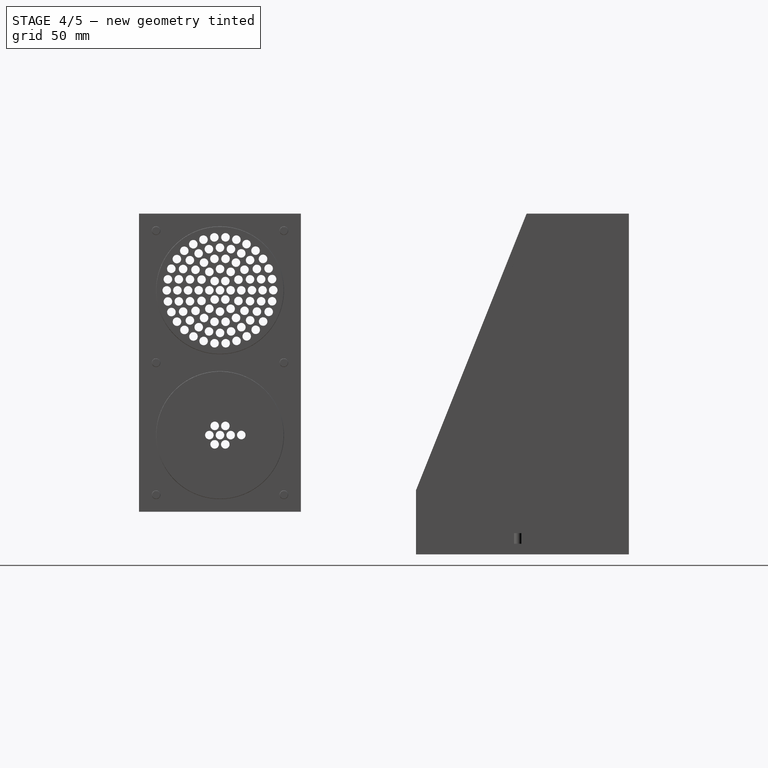
[diagram: stage 4 of 5 — right view after this stage's code; geometry added in this stage tinted green]
FEATURE [PartDesign::PolarPattern] PolarPattern002
  Angle = 360
  Axis = -> Pocket005 [Edge64]
  BaseFeature = -> Pocket005
  Occurrences = 18
  Originals = -> [Pocket005]
  Placement = pos=(0,0,0) rot=(1,1,1;2.0944rad)
FEATURE [Sketcher::SketchObject] Sketch010
  ExternalGeometry = -> [PolarPattern002]
  FullyConstrained = false
  MapMode = 5
  Placement = pos=(3,-4e-15,4e-15) rot=(0.57735,0.57735,0.57735;2.0944rad)
  Support = -> [PolarPattern002]
  sketch-geometry (1):
    g0: Circle CenterX=-172 CenterY=124.023 CenterZ=0 NormalX=0 NormalY=0 NormalZ=1 AngleXU=0 Radius=2
  constraints (2):
    c: Diameter(g0) = 4
    c: Distance(g0,g-3) = 20
FEATURE [PartDesign::Pocket] Pocket006
  BaseFeature = -> PolarPattern002
  Direction = (-1,1.3e-15,-1.3e-15)
  Length = 5
  Length2 = 5
  Placement = pos=(0,0,0) rot=(1,1,1;2.0944rad)
  Profile = -> Sketch010
  ReferenceAxis = -> Sketch010 [N_Axis]
  Type = 1
FEATURE [PartDesign::PolarPattern] PolarPattern003
  Angle = 360
  Axis = -> Pocket006 [Edge109]
  BaseFeature = -> Pocket006
  Occurrences = 24
  Originals = -> [Pocket006]
  Placement = pos=(0,0,0) rot=(1,1,1;2.0944rad)
FEATURE [Sketcher::SketchObject] Sketch011
  ExternalGeometry = -> [PolarPattern003]
  FullyConstrained = false
  MapMode = 5
  Placement = pos=(3,-4.6e-15,4.3e-15) rot=(0.57735,0.57735,0.57735;2.0944rad)
  Support = -> [PolarPattern003]
  sketch-geometry (1):
    g0: Circle CenterX=-167 CenterY=124.049 CenterZ=0 NormalX=0 NormalY=0 NormalZ=1 AngleXU=0 Radius=2
  constraints (2):
    c: Diameter(g0) = 4
    c: Distance(g0,g-3) = 25
FEATURE [PartDesign::Pocket] Pocket007
  BaseFeature = -> PolarPattern003
  Direction = (-1,1.6e-15,-1.6e-15)
  Length = 5
  Length2 = 5
  Placement = pos=(0,0,0) rot=(1,1,1;2.0944rad)
  Profile = -> Sketch011
  ReferenceAxis = -> Sketch011 [N_Axis]
  Type = 1
FEATURE [PartDesign::PolarPattern] PolarPattern004
  Angle = 360
  Axis = -> Pocket007 [Edge154]
  BaseFeature = -> Pocket007
  Occurrences = 30
  Originals = -> [Pocket007]
  Placement = pos=(0,0,0) rot=(1,1,1;2.0944rad)
FEATURE [Sketcher::SketchObject] Sketch012
  ExternalGeometry = -> [PolarPattern004]
  FullyConstrained = false
  MapMode = 5
  Placement = pos=(3,-5.3e-15,4.7e-15) rot=(0.57735,0.57735,0.57735;2.0944rad)
  Support = -> [PolarPattern004]
  sketch-geometry (2):
    g0: Circle CenterX=-192 CenterY=56 CenterZ=0 NormalX=0 NormalY=0 NormalZ=1 AngleXU=0 Radius=2
    g1: Circle CenterX=-187 CenterY=55.9841 CenterZ=0 NormalX=0 NormalY=0 NormalZ=1 AngleXU=0 Radius=2
  constraints (4):
    c: Coincident(g0,g-3)
    c: Diameter(g0) = 4
    c: Equal(g0,g1)
    c: Distance(g0,g1) = 5
FEATURE [PartDesign::Pocket] Pocket008
  BaseFeature = -> PolarPattern004
  Direction = (-1,1.7e-15,-1.4e-15)
  Length = 5
  Length2 = 5
  Placement = pos=(0,0,0) rot=(1,1,1;2.0944rad)
  Profile = -> Sketch012
  ReferenceAxis = -> Sketch012 [N_Axis]
  Type = 1
FEATURE [PartDesign::PolarPattern] PolarPattern005
  Angle = 360
  Axis = -> Pocket008 [Edge121]
  BaseFeature = -> Pocket008
  Occurrences = 6
  Originals = -> [Pocket008]
  Placement = pos=(0,0,0) rot=(1,1,1;2.0944rad)
FEATURE [Sketcher::SketchObject] Sketch013
  ExternalGeometry = -> [PolarPattern005]
  FullyConstrained = false
  MapMode = 5
  Placement = pos=(3,-6e-15,5e-15) rot=(0.57735,0.57735,0.57735;2.0944rad)
  Support = -> [PolarPattern005]
  sketch-geometry (1):
    g0: Circle CenterX=-182 CenterY=56.048 CenterZ=0 NormalX=0 NormalY=0 NormalZ=1 AngleXU=0 Radius=2
  constraints (2):
    c: Diameter(g0) = 4
    c: Distance(g-3,g0) = 10
FEATURE [PartDesign::Pocket] Pocket009
  BaseFeature = -> PolarPattern005
  Direction = (-1,1.9e-15,-1.7e-15)
  Length = 5
  Length2 = 5
  Placement = pos=(0,0,0) rot=(1,1,1;2.0944rad)
  Profile = -> Sketch013
  ReferenceAxis = -> Sketch013 [N_Axis]
  Type = 1
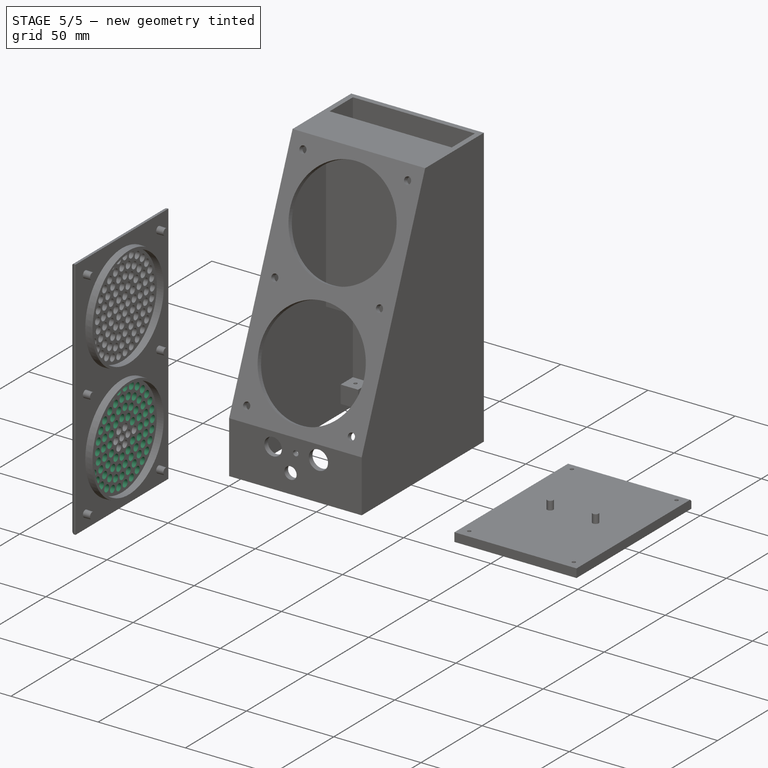
[diagram: stage 5 of 5 — iso view after this stage's code; geometry added in this stage tinted green]
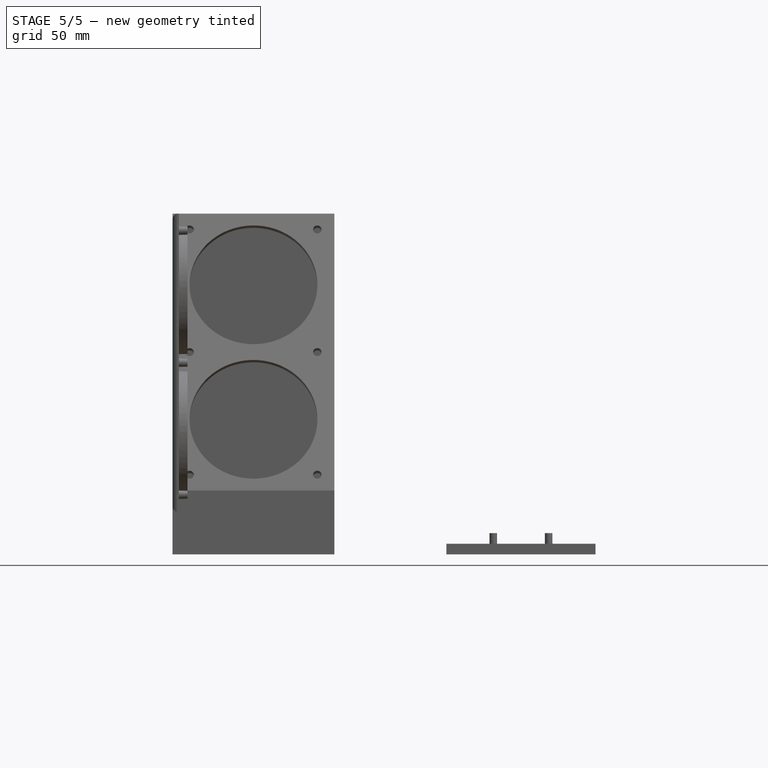
[diagram: stage 5 of 5 — front view after this stage's code; geometry added in this stage tinted green]
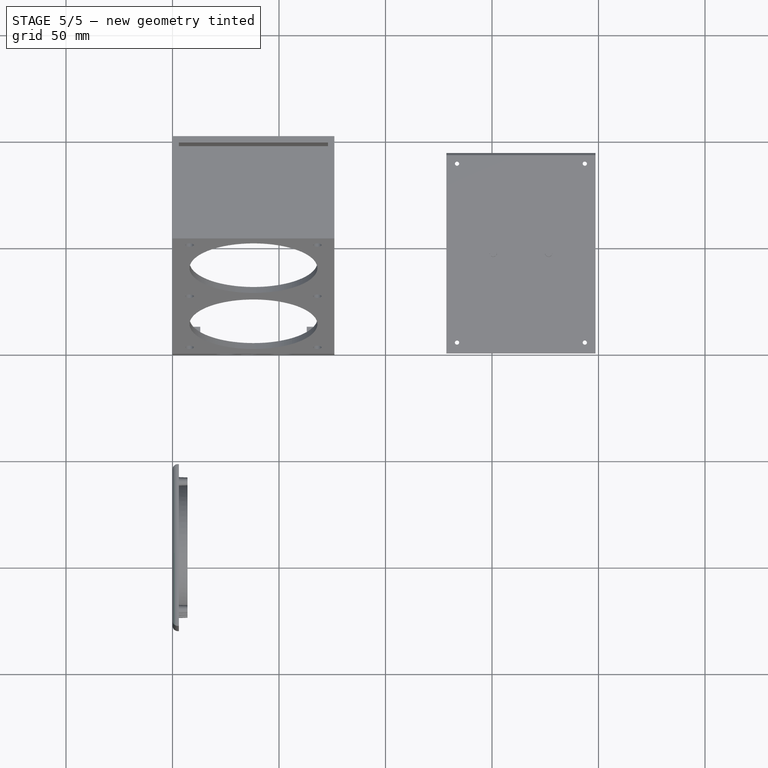
[diagram: stage 5 of 5 — top view after this stage's code; geometry added in this stage tinted green]
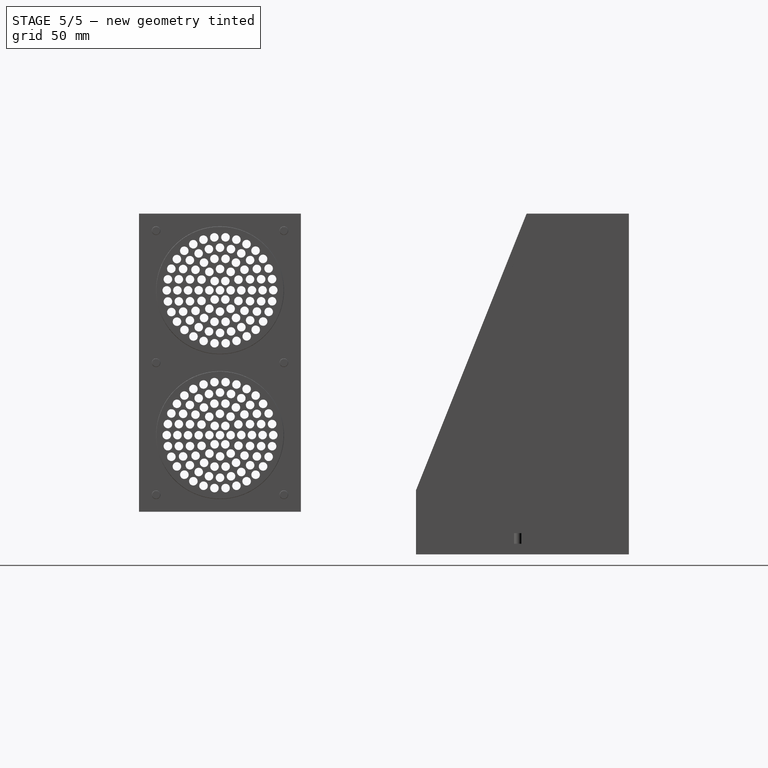
[diagram: stage 5 of 5 — right view after this stage's code; geometry added in this stage tinted green]
FEATURE [PartDesign::PolarPattern] PolarPattern006
  Angle = 360
  Axis = -> Pocket009 [Edge138]
  BaseFeature = -> Pocket009
  Occurrences = 12
  Originals = -> [Pocket009]
  Placement = pos=(0,0,0) rot=(1,1,1;2.0944rad)
FEATURE [Sketcher::SketchObject] Sketch014
  ExternalGeometry = -> [PolarPattern006]
  FullyConstrained = false
  MapMode = 5
  Placement = pos=(3,-6.6e-15,5.3e-15) rot=(0.57735,0.57735,0.57735;2.0944rad)
  Support = -> [PolarPattern006]
  sketch-geometry (1):
    g0: Circle CenterX=-177 CenterY=56.037 CenterZ=0 NormalX=0 NormalY=0 NormalZ=1 AngleXU=0 Radius=2
  constraints (2):
    c: Distance(g-3,g0) = 15
    c: Diameter(g0) = 4
FEATURE [PartDesign::Pocket] Pocket010
  BaseFeature = -> PolarPattern006
  Direction = (-1,2.2e-15,-1.8e-15)
  Length = 5
  Length2 = 5
  Placement = pos=(0,0,0) rot=(1,1,1;2.0944rad)
  Profile = -> Sketch014
  ReferenceAxis = -> Sketch014 [N_Axis]
  Type = 1
FEATURE [PartDesign::PolarPattern] PolarPattern007
  Angle = 360
  Axis = -> Pocket010 [Edge158]
  BaseFeature = -> Pocket010
  Occurrences = 18
  Originals = -> [Pocket010]
  Placement = pos=(0,0,0) rot=(1,1,1;2.0944rad)
FEATURE [Sketcher::SketchObject] Sketch015
  ExternalGeometry = -> [PolarPattern007]
  FullyConstrained = false
  MapMode = 5
  Placement = pos=(3,-7.3e-15,5.7e-15) rot=(0.57735,0.57735,0.57735;2.0944rad)
  Support = -> [PolarPattern007]
  sketch-geometry (1):
    g0: Circle CenterX=-172 CenterY=56 CenterZ=0 NormalX=0 NormalY=0 NormalZ=1 AngleXU=0 Radius=2
  constraints (2):
    c: Distance(g-3,g0) = 20
    c: Diameter(g0) = 4
FEATURE [PartDesign::Pocket] Pocket011
  BaseFeature = -> PolarPattern007
  Direction = (-1,2.4e-15,-2e-15)
  Length = 5
  Length2 = 5
  Placement = pos=(0,0,0) rot=(1,1,1;2.0944rad)
  Profile = -> Sketch015
  ReferenceAxis = -> Sketch015 [N_Axis]
  Type = 1
FEATURE [PartDesign::PolarPattern] PolarPattern008
  Angle = 360
  Axis = -> Pocket011 [Edge192]
  BaseFeature = -> Pocket011
  Occurrences = 24
  Originals = -> [Pocket011]
  Placement = pos=(0,0,0) rot=(1,1,1;2.0944rad)
FEATURE [Sketcher::SketchObject] Sketch016
  ExternalGeometry = -> [PolarPattern008]
  FullyConstrained = false
  MapMode = 5
  Placement = pos=(3,-8e-15,6e-15) rot=(0.57735,0.57735,0.57735;2.0944rad)
  Support = -> [PolarPattern008]
  sketch-geometry (1):
    g0: Circle CenterX=-167 CenterY=55.994 CenterZ=0 NormalX=0 NormalY=0 NormalZ=1 AngleXU=0 Radius=2
  constraints (2):
    c: Distance(g-3,g0) = 25
    c: Diameter(g0) = 4
FEATURE [PartDesign::Pocket] Pocket012
  BaseFeature = -> PolarPattern008
  Direction = (-1,2.6e-15,-1.9e-15)
  Length = 5
  Length2 = 5
  Placement = pos=(0,0,0) rot=(1,1,1;2.0944rad)
  Profile = -> Sketch016
  ReferenceAxis = -> Sketch016 [N_Axis]
  Type = 1
FEATURE [PartDesign::PolarPattern] PolarPattern009
  Angle = 360
  Axis = -> Pocket012 [Edge344]
  BaseFeature = -> Pocket012
  Occurrences = 30
  Originals = -> [Pocket012]
  Placement = pos=(0,0,0) rot=(1,1,1;2.0944rad)
FEATURE [PartDesign::Fillet] Fillet
  Base = -> PolarPattern009 [Edge6,Edge3,Edge9,Edge11]
  BaseFeature = -> PolarPattern009
  Placement = pos=(0,0,0) rot=(1,1,1;2.0944rad)
  Radius = 2.5
  SupportTransform = false
  UseAllEdges = false
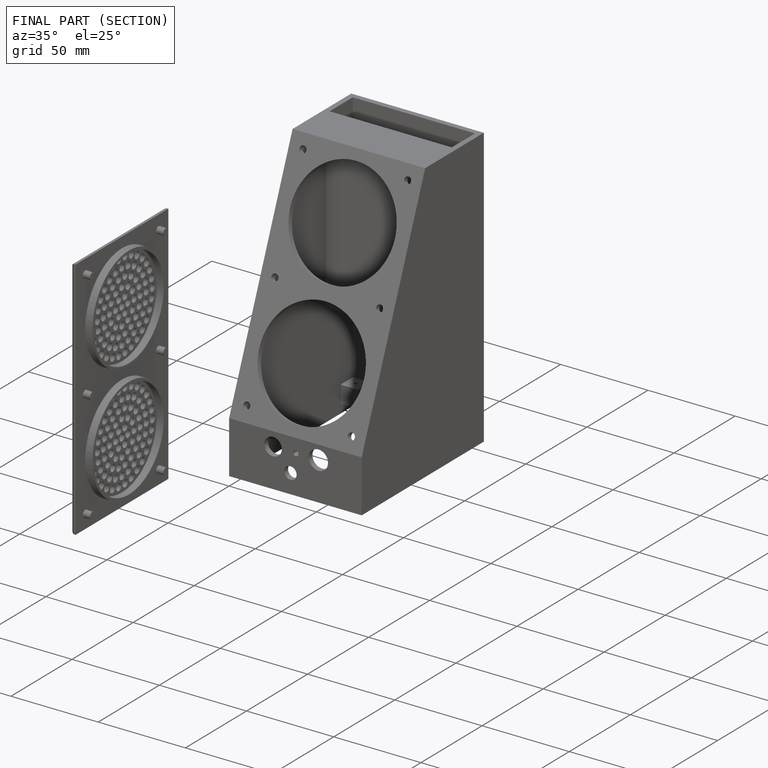
[diagram: finished part — half-section view (interior)]
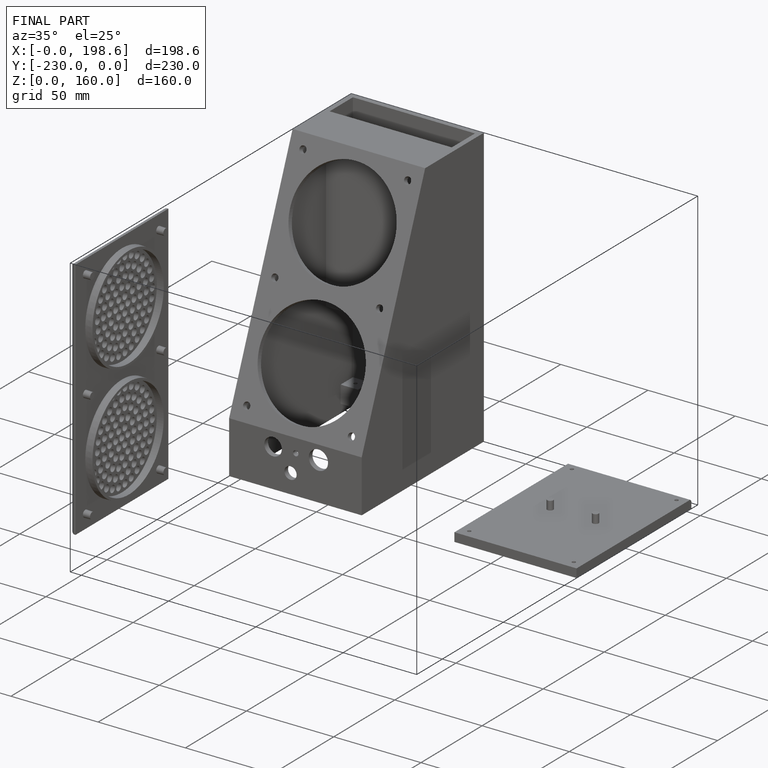
[diagram: finished part — iso view with bounding-box wireframe]
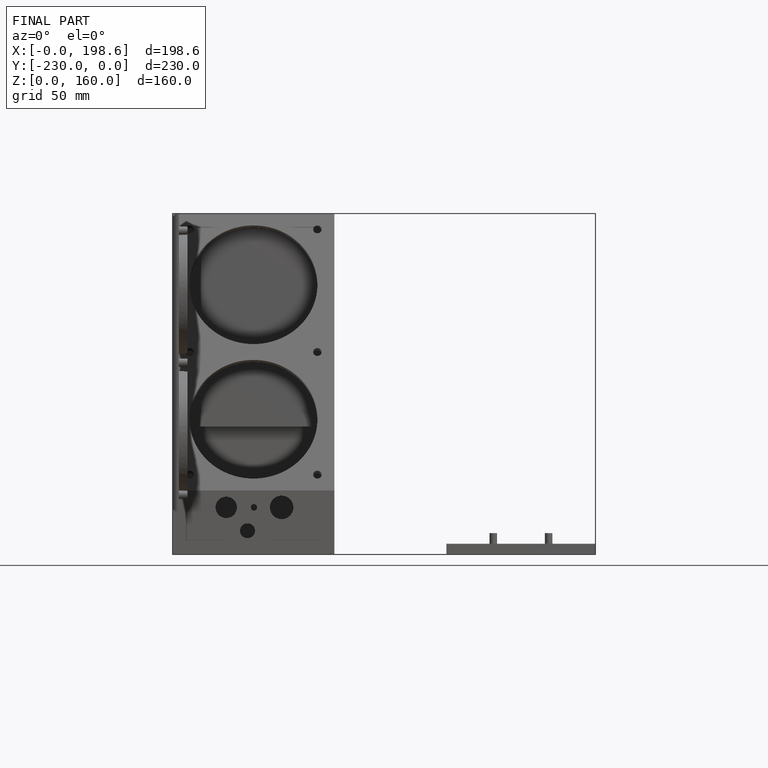
[diagram: finished part — front view with bounding-box wireframe]
